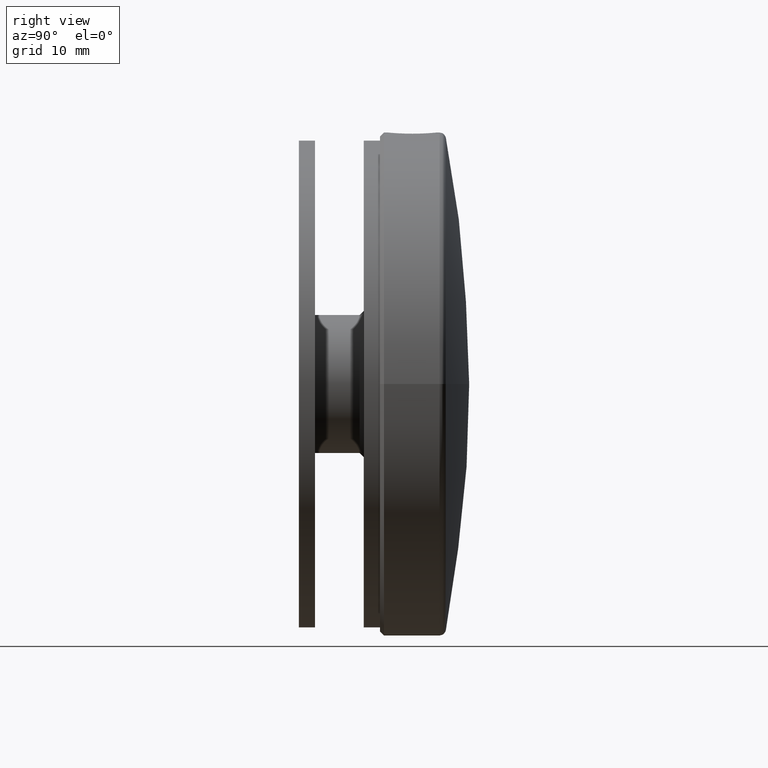
[diagram: clean part render]
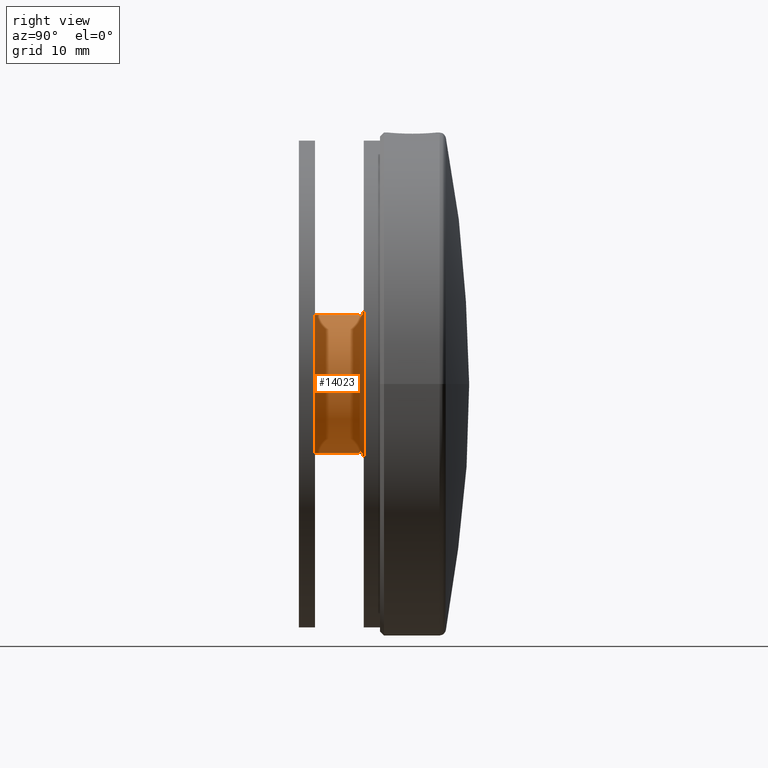
[diagram: same view with one face highlighted and labeled with its STEP entity id]
A machine part, right view. The second image highlights one B-rep face of the part: STEP entity #14023.
In plain terms, the highlighted cylindrical surface (partial cylindrical patch) has radius 8.5 mm, axis along (-0, 1, -0).
Its self-contained STEP definition (entity closure, byte-faithful):
#565 = CARTESIAN_POINT ( 'NONE',  ( 0.000000000000000000, 8.000000000000000000, 0.000000000000000000 ) ) ;
#992 = CARTESIAN_POINT ( 'NONE',  ( 1.040949779275250140E-15, 2.499999999999990230, 8.500000000000000000 ) ) ;
#1295 = VERTEX_POINT ( 'NONE', #12858 ) ;
#1595 = VECTOR ( 'NONE', #4124, 1000.000000000000000 ) ;
#1664 = LINE ( 'NONE', #3897, #11652 ) ;
#2182 = AXIS2_PLACEMENT_3D ( 'NONE', #565, #12665, #7846 ) ;
#2343 = LINE ( 'NONE', #6598, #1595 ) ;
#3434 = ORIENTED_EDGE ( 'NONE', *, *, #5268, .T. ) ;
#3626 = CARTESIAN_POINT ( 'NONE',  ( 0.000000000000000000, 2.499999999999990230, -8.500000000000000000 ) ) ;
#3897 = CARTESIAN_POINT ( 'NONE',  ( 1.040949779275250140E-15, 8.000000000000000000, 8.500000000000000000 ) ) ;
#4124 = DIRECTION ( 'NONE',  ( -0.000000000000000000, -1.000000000000000000, -0.000000000000000000 ) ) ;
#4405 = VERTEX_POINT ( 'NONE', #11407 ) ;
#4808 = VERTEX_POINT ( 'NONE', #3626 ) ;
#5268 = EDGE_CURVE ( 'NONE', #4405, #4808, #2343, .T. ) ;
#5381 = AXIS2_PLACEMENT_3D ( 'NONE', #10370, #15084, #7809 ) ;
#6598 = CARTESIAN_POINT ( 'NONE',  ( 0.000000000000000000, 8.000000000000000000, -8.500000000000000000 ) ) ;
#6914 = AXIS2_PLACEMENT_3D ( 'NONE', #15253, #13995, #10428 ) ;
#7809 = DIRECTION ( 'NONE',  ( 0.000000000000000000, 0.000000000000000000, 1.000000000000000000 ) ) ;
#7846 = DIRECTION ( 'NONE',  ( 0.000000000000000000, 0.000000000000000000, -1.000000000000000000 ) ) ;
#8232 = ORIENTED_EDGE ( 'NONE', *, *, #14655, .T. ) ;
#8545 = CYLINDRICAL_SURFACE ( 'NONE', #2182, 8.500000000000000000 ) ;
#8576 = ORIENTED_EDGE ( 'NONE', *, *, #13551, .F. ) ;
#10223 = EDGE_CURVE ( 'NONE', #1295, #13727, #1664, .T. ) ;
#10370 = CARTESIAN_POINT ( 'NONE',  ( 0.000000000000000000, 8.000000000000000000, 0.000000000000000000 ) ) ;
#10428 = DIRECTION ( 'NONE',  ( 0.000000000000000000, 0.000000000000000000, 1.000000000000000000 ) ) ;
#10636 = CIRCLE ( 'NONE', #6914, 8.500000000000000000 ) ;
#10819 = FACE_OUTER_BOUND ( 'NONE', #10898, .T. ) ;
#10898 = EDGE_LOOP ( 'NONE', ( #11599, #8576, #3434, #8232 ) ) ;
#11407 = CARTESIAN_POINT ( 'NONE',  ( 0.000000000000000000, 8.000000000000000000, -8.500000000000000000 ) ) ;
#11599 = ORIENTED_EDGE ( 'NONE', *, *, #10223, .F. ) ;
#11652 = VECTOR ( 'NONE', #12447, 1000.000000000000000 ) ;
#12447 = DIRECTION ( 'NONE',  ( -0.000000000000000000, -1.000000000000000000, -0.000000000000000000 ) ) ;
#12665 = DIRECTION ( 'NONE',  ( -0.000000000000000000, -1.000000000000000000, -0.000000000000000000 ) ) ;
#12858 = CARTESIAN_POINT ( 'NONE',  ( 1.040949779275250140E-15, 8.000000000000000000, 8.500000000000000000 ) ) ;
#13551 = EDGE_CURVE ( 'NONE', #4405, #1295, #15327, .T. ) ;
#13727 = VERTEX_POINT ( 'NONE', #992 ) ;
#13995 = DIRECTION ( 'NONE',  ( -0.000000000000000000, 1.000000000000000000, -0.000000000000000000 ) ) ;
#14023 = ADVANCED_FACE ( 'NONE', ( #10819 ), #8545, .T. ) ;
#14655 = EDGE_CURVE ( 'NONE', #4808, #13727, #10636, .T. ) ;
#15084 = DIRECTION ( 'NONE',  ( 0.000000000000000000, 1.000000000000000000, 0.000000000000000000 ) ) ;
#15253 = CARTESIAN_POINT ( 'NONE',  ( 0.000000000000000000, 2.499999999999990230, 0.000000000000000000 ) ) ;
#15327 = CIRCLE ( 'NONE', #5381, 8.500000000000000000 ) ;